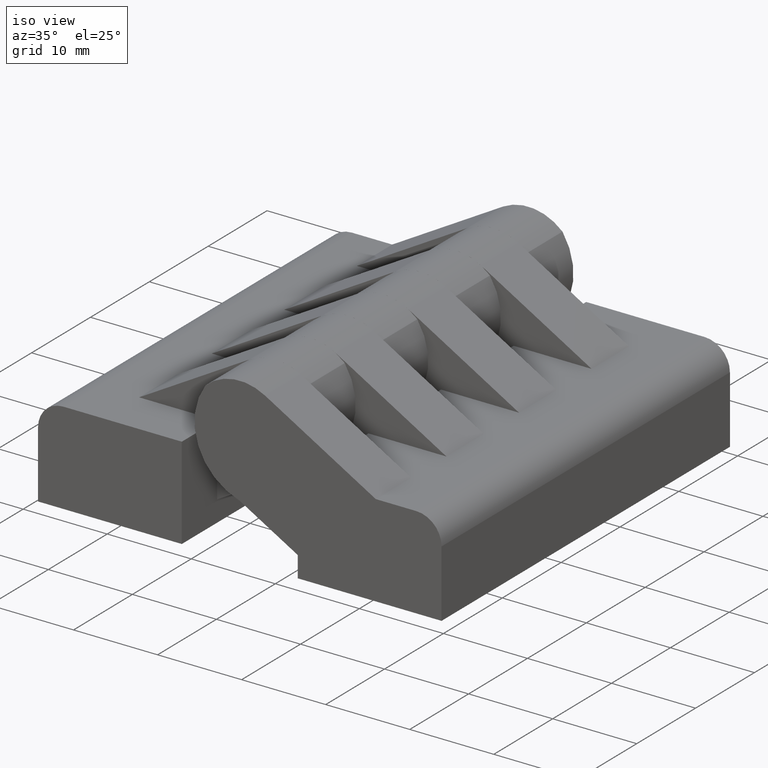
[diagram: clean part render]
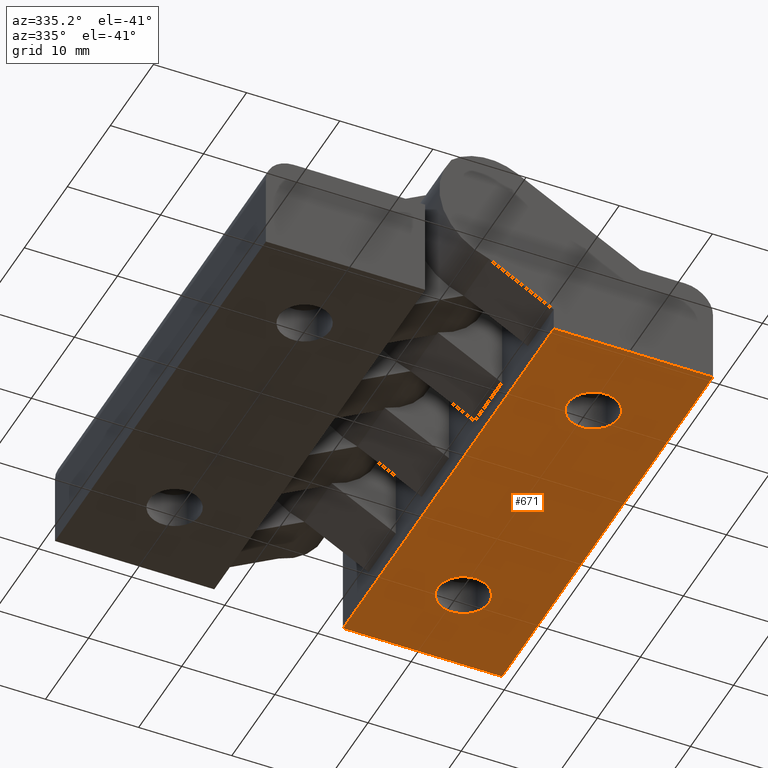
[diagram: tour spotlight — one face highlighted and labeled with its STEP entity id]
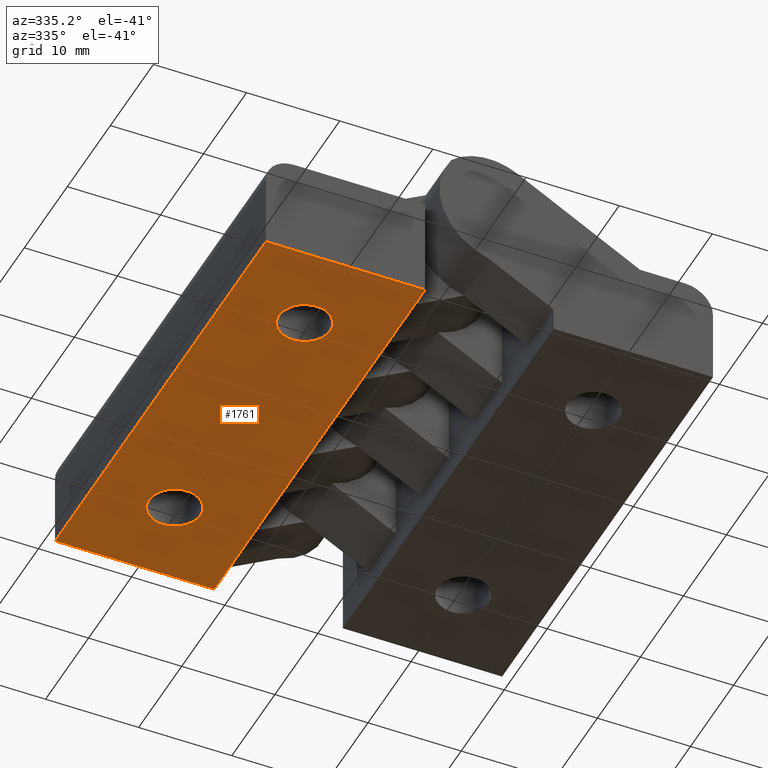
[diagram: tour spotlight — one face highlighted and labeled with its STEP entity id]
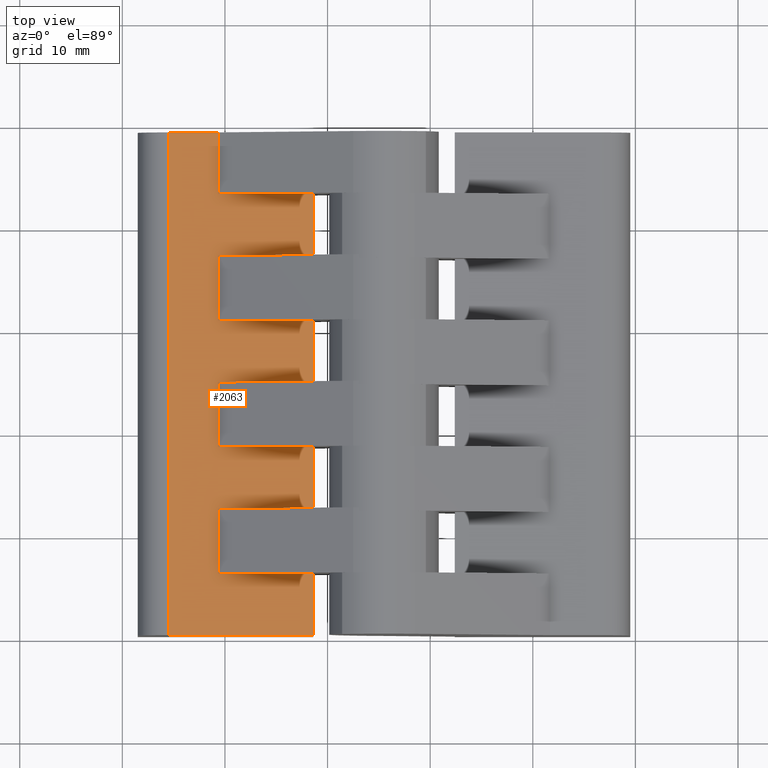
[diagram: tour spotlight — one face highlighted and labeled with its STEP entity id]
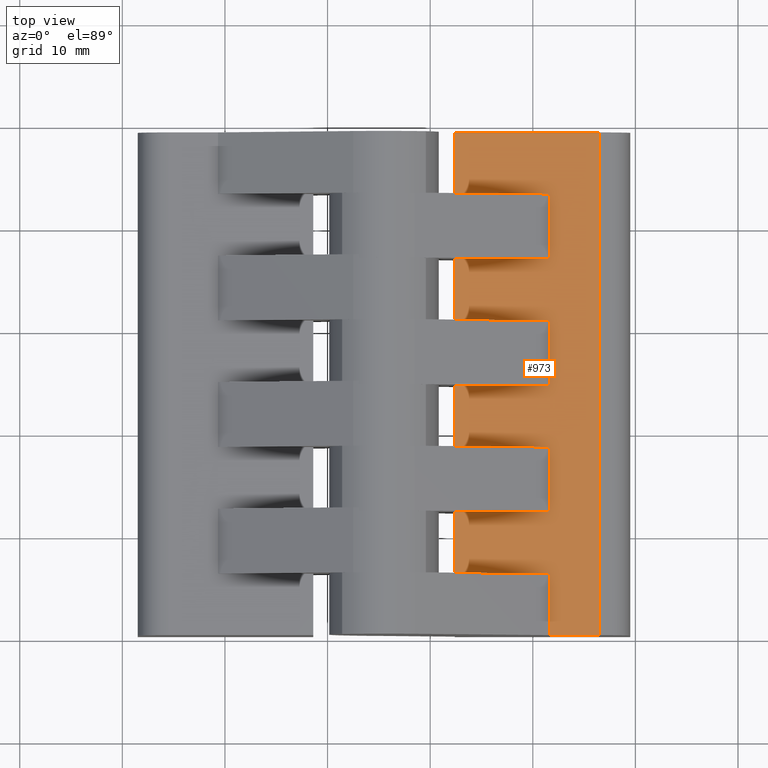
[diagram: tour spotlight — one face highlighted and labeled with its STEP entity id]
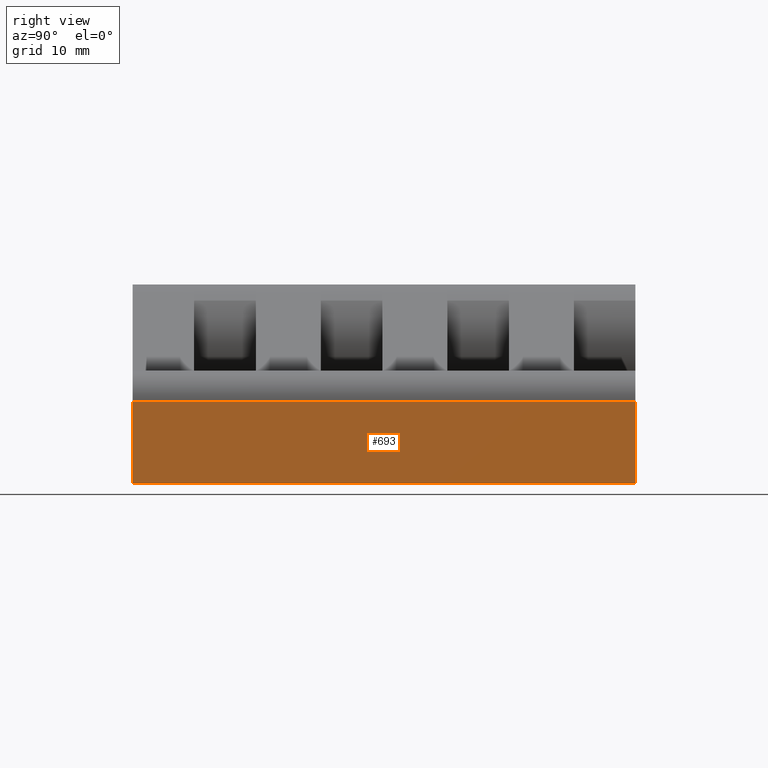
[diagram: tour spotlight — one face highlighted and labeled with its STEP entity id]
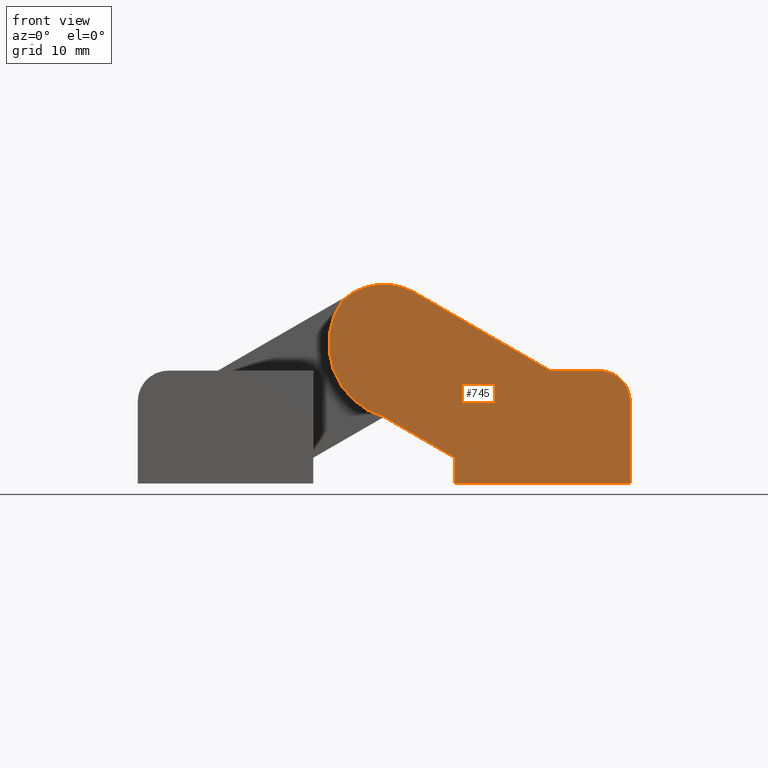
[diagram: tour spotlight — one face highlighted and labeled with its STEP entity id]
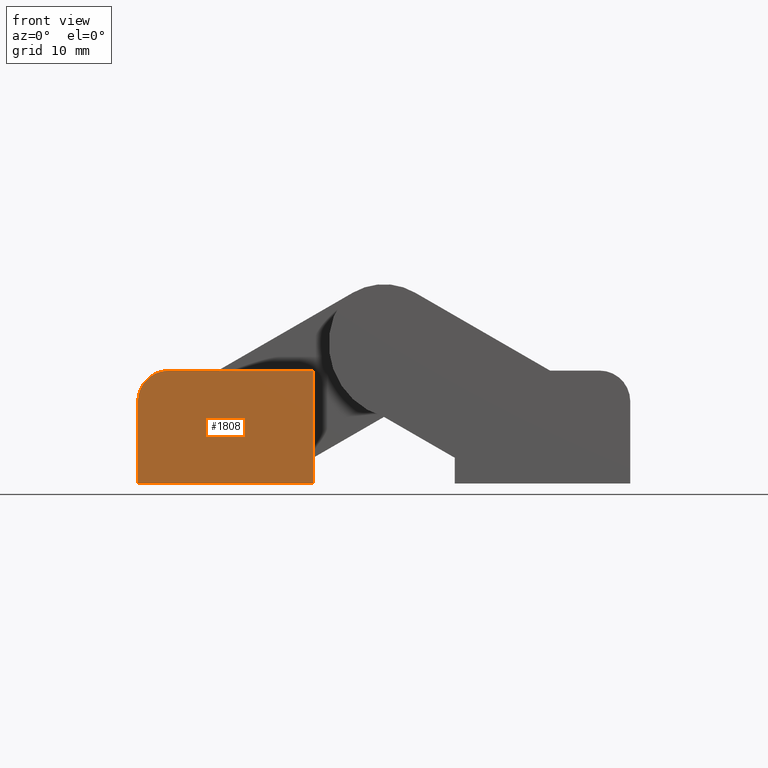
[diagram: tour spotlight — one face highlighted and labeled with its STEP entity id]
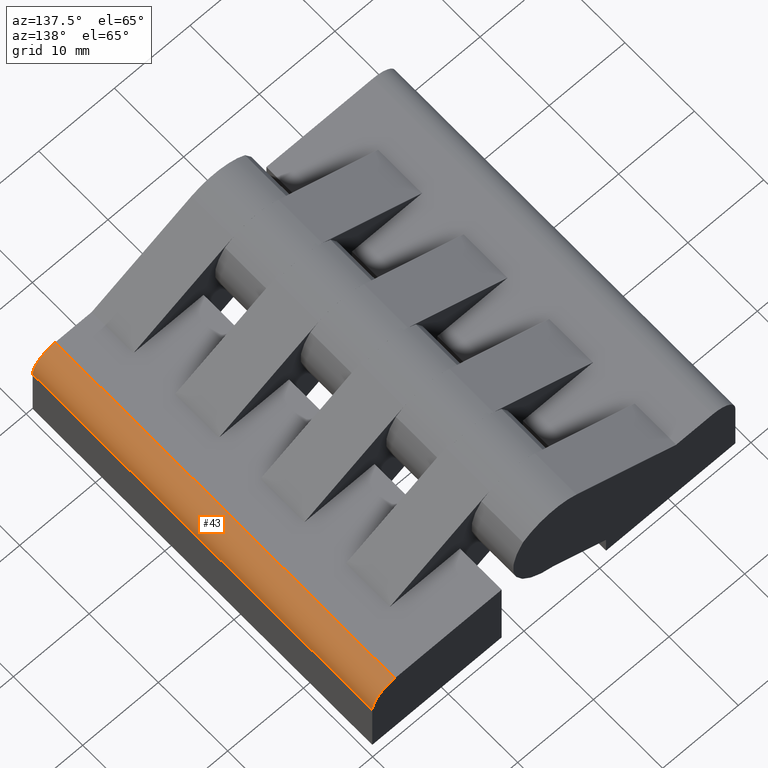
[diagram: tour spotlight — one face highlighted and labeled with its STEP entity id]
A machine part: a face-by-face anatomy tour. The part has 68 B-rep faces; the first image is the clean iso view, then the 8 largest visible faces are spotlighted one at a time (largest first), each with its STEP entity span.

Face 1 — auxiliary view, entity #671. In plain terms, the highlighted planar face has unit normal (0, 0, -1).
Definition (entity closure, byte-faithful):
#592=CARTESIAN_POINT('',(22.399999999910506,9.399999999766358,-5.755840E-016));
#593=DIRECTION('',(0.0,0.0,-1.0));
#594=DIRECTION('',(1.0,0.0,0.0));
#595=AXIS2_PLACEMENT_3D('',#592,#593,#594);
#596=PLANE('',#595);
#597=CARTESIAN_POINT('',(39.499999999842203,9.399999999766358,-5.755840E-016));
#598=VERTEX_POINT('',#597);
#599=CARTESIAN_POINT('',(39.499999999842203,-39.600000000037646,2.424801E-015));
#600=VERTEX_POINT('',#599);
#601=CARTESIAN_POINT('',(39.499999999842203,9.399999999766358,-5.755840E-016));
#602=DIRECTION('',(0.0,-1.0,0.0));
#603=VECTOR('',#602,48.999999999804004);
#604=LINE('',#601,#603);
#605=EDGE_CURVE('',#598,#600,#604,.T.);
#606=ORIENTED_EDGE('',*,*,#605,.T.);
#607=CARTESIAN_POINT('',(22.399999999910506,-39.600000000037646,2.424801E-015));
#608=VERTEX_POINT('',#607);
#609=CARTESIAN_POINT('',(22.399999999910506,-39.600000000037646,2.424801E-015));
#610=DIRECTION('',(1.0,0.0,0.0));
#611=VECTOR('',#610,17.099999999931697);
#612=LINE('',#609,#611);
#613=EDGE_CURVE('',#608,#600,#612,.T.);
#614=ORIENTED_EDGE('',*,*,#613,.F.);
#615=CARTESIAN_POINT('',(22.399999999910506,9.399999999766358,-5.755840E-016));
#616=VERTEX_POINT('',#615);
#617=CARTESIAN_POINT('',(22.399999999910506,-39.600000000037646,2.424801E-015));
#618=DIRECTION('',(0.0,1.0,0.0));
#619=VECTOR('',#618,48.999999999804004);
#620=LINE('',#617,#619);
#621=EDGE_CURVE('',#608,#616,#620,.T.);
#622=ORIENTED_EDGE('',*,*,#621,.T.);
#623=CARTESIAN_POINT('',(22.399999999910506,9.399999999766358,-5.755840E-016));
#624=DIRECTION('',(1.0,0.0,0.0));
#625=VECTOR('',#624,17.099999999931697);
#626=LINE('',#623,#625);
#627=EDGE_CURVE('',#616,#598,#626,.T.);
#628=ORIENTED_EDGE('',*,*,#627,.T.);
#629=EDGE_LOOP('',(#606,#614,#622,#628));
#630=FACE_OUTER_BOUND('',#629,.T.);
#631=CARTESIAN_POINT('',(28.249999999876309,-30.200000000075299,1.849217E-015));
#632=VERTEX_POINT('',#631);
#633=CARTESIAN_POINT('',(33.749999999876309,-30.200000000075299,1.849217E-015));
#634=VERTEX_POINT('',#633);
#635=CARTESIAN_POINT('',(30.999999999876309,-30.200000000075299,1.849217E-015));
#636=DIRECTION('',(0.0,-6.123234E-017,-1.0));
#637=DIRECTION('',(1.0,0.0,0.0));
#638=AXIS2_PLACEMENT_3D('',#635,#636,#637);
#639=CIRCLE('',#638,2.750000000000000);
#640=EDGE_CURVE('',#632,#634,#639,.T.);
#641=ORIENTED_EDGE('',*,*,#640,.F.);
#642=CARTESIAN_POINT('',(30.999999999876309,-30.200000000075299,1.849217E-015));
#643=DIRECTION('',(0.0,-6.123234E-017,-1.0));
#644=DIRECTION('',(1.0,0.0,0.0));
#645=AXIS2_PLACEMENT_3D('',#642,#643,#644);
#646=CIRCLE('',#645,2.750000000000000);
#647=EDGE_CURVE('',#634,#632,#646,.T.);
#648=ORIENTED_EDGE('',*,*,#647,.F.);
#649=EDGE_LOOP('',(#641,#648));
#650=FACE_BOUND('',#649,.T.);
#651=CARTESIAN_POINT('',(28.249999999876309,-1.959890E-010,1.200087E-026));
#652=VERTEX_POINT('',#651);
#653=CARTESIAN_POINT('',(33.749999999876309,-1.959890E-010,1.200087E-026));
#654=VERTEX_POINT('',#653);
#655=CARTESIAN_POINT('',(30.999999999876309,-1.959890E-010,1.200087E-026));
#656=DIRECTION('',(0.0,-6.123234E-017,-1.0));
#657=DIRECTION('',(1.0,0.0,0.0));
#658=AXIS2_PLACEMENT_3D('',#655,#656,#657);
#659=CIRCLE('',#658,2.750000000000000);
#660=EDGE_CURVE('',#652,#654,#659,.T.);
#661=ORIENTED_EDGE('',*,*,#660,.F.);
#662=CARTESIAN_POINT('',(30.999999999876309,-1.959890E-010,1.200087E-026));
#663=DIRECTION('',(0.0,-6.123234E-017,-1.0));
#664=DIRECTION('',(1.0,0.0,0.0));
#665=AXIS2_PLACEMENT_3D('',#662,#663,#664);
#666=CIRCLE('',#665,2.750000000000000);
#667=EDGE_CURVE('',#654,#652,#666,.T.);
#668=ORIENTED_EDGE('',*,*,#667,.F.);
#669=EDGE_LOOP('',(#661,#668));
#670=FACE_BOUND('',#669,.T.);
#671=ADVANCED_FACE('',(#630,#650,#670),#596,.T.);

Face 2 — auxiliary view, entity #1761. In plain terms, the highlighted planar face has unit normal (0, 0, -1).
Definition (entity closure, byte-faithful):
#1682=CARTESIAN_POINT('',(8.599999999965803,-39.599999999841650,2.424801E-015));
#1683=DIRECTION('',(0.0,0.0,-1.0));
#1684=DIRECTION('',(-1.0,0.0,0.0));
#1685=AXIS2_PLACEMENT_3D('',#1682,#1683,#1684);
#1686=PLANE('',#1685);
#1687=CARTESIAN_POINT('',(-8.499999999965894,-39.599999999841650,2.424801E-015));
#1688=VERTEX_POINT('',#1687);
#1689=CARTESIAN_POINT('',(-8.499999999965894,9.399999999962347,-5.755840E-016));
#1690=VERTEX_POINT('',#1689);
#1691=CARTESIAN_POINT('',(-8.499999999965894,-39.599999999841650,2.424801E-015));
#1692=DIRECTION('',(0.0,1.0,0.0));
#1693=VECTOR('',#1692,48.999999999804004);
#1694=LINE('',#1691,#1693);
#1695=EDGE_CURVE('',#1688,#1690,#1694,.T.);
#1696=ORIENTED_EDGE('',*,*,#1695,.T.);
#1697=CARTESIAN_POINT('',(8.599999999965803,9.399999999962351,-5.755840E-016));
#1698=VERTEX_POINT('',#1697);
#1699=CARTESIAN_POINT('',(8.599999999965803,9.399999999962349,-5.755840E-016));
#1700=DIRECTION('',(-1.0,0.0,0.0));
#1701=VECTOR('',#1700,17.099999999931697);
#1702=LINE('',#1699,#1701);
#1703=EDGE_CURVE('',#1698,#1690,#1702,.T.);
#1704=ORIENTED_EDGE('',*,*,#1703,.F.);
#1705=CARTESIAN_POINT('',(8.599999999965803,-39.599999999841650,2.424801E-015));
#1706=VERTEX_POINT('',#1705);
#1707=CARTESIAN_POINT('',(8.599999999965803,9.399999999962351,-5.755840E-016));
#1708=DIRECTION('',(0.0,-1.0,0.0));
#1709=VECTOR('',#1708,48.999999999804004);
#1710=LINE('',#1707,#1709);
#1711=EDGE_CURVE('',#1698,#1706,#1710,.T.);
#1712=ORIENTED_EDGE('',*,*,#1711,.T.);
#1713=CARTESIAN_POINT('',(8.599999999965803,-39.599999999841650,2.424801E-015));
#1714=DIRECTION('',(-1.0,0.0,0.0));
#1715=VECTOR('',#1714,17.099999999931697);
#1716=LINE('',#1713,#1715);
#1717=EDGE_CURVE('',#1706,#1688,#1716,.T.);
#1718=ORIENTED_EDGE('',*,*,#1717,.T.);
#1719=EDGE_LOOP('',(#1696,#1704,#1712,#1718));
#1720=FACE_OUTER_BOUND('',#1719,.T.);
#1721=CARTESIAN_POINT('',(2.750000000000000,3.367779E-016,-2.062170E-032));
#1722=VERTEX_POINT('',#1721);
#1723=CARTESIAN_POINT('',(-2.750000000000000,0.0,0.0));
#1724=VERTEX_POINT('',#1723);
#1725=CARTESIAN_POINT('',(0.0,0.0,0.0));
#1726=DIRECTION('',(0.0,-6.123234E-017,-1.0));
#1727=DIRECTION('',(-1.0,-1.224647E-016,7.498799E-033));
#1728=AXIS2_PLACEMENT_3D('',#1725,#1726,#1727);
#1729=CIRCLE('',#1728,2.750000000000000);
#1730=EDGE_CURVE('',#1722,#1724,#1729,.T.);
#1731=ORIENTED_EDGE('',*,*,#1730,.F.);
#1732=CARTESIAN_POINT('',(0.0,0.0,0.0));
#1733=DIRECTION('',(0.0,-6.123234E-017,-1.0));
#1734=DIRECTION('',(-1.0,-1.224647E-016,7.498799E-033));
#1735=AXIS2_PLACEMENT_3D('',#1732,#1733,#1734);
#1736=CIRCLE('',#1735,2.750000000000000);
#1737=EDGE_CURVE('',#1724,#1722,#1736,.T.);
#1738=ORIENTED_EDGE('',*,*,#1737,.F.);
#1739=EDGE_LOOP('',(#1731,#1738));
#1740=FACE_BOUND('',#1739,.T.);
#1741=CARTESIAN_POINT('',(2.750000000000000,-30.199999999879303,1.849217E-015));
#1742=VERTEX_POINT('',#1741);
#1743=CARTESIAN_POINT('',(-2.750000000000000,-30.199999999879303,1.849217E-015));
#1744=VERTEX_POINT('',#1743);
#1745=CARTESIAN_POINT('',(0.0,-30.199999999879303,1.849217E-015));
#1746=DIRECTION('',(0.0,-6.123234E-017,-1.0));
#1747=DIRECTION('',(-1.0,-1.224647E-016,7.498799E-033));
#1748=AXIS2_PLACEMENT_3D('',#1745,#1746,#1747);
#1749=CIRCLE('',#1748,2.750000000000000);
#1750=EDGE_CURVE('',#1742,#1744,#1749,.T.);
#1751=ORIENTED_EDGE('',*,*,#1750,.F.);
#1752=CARTESIAN_POINT('',(0.0,-30.199999999879303,1.849217E-015));
#1753=DIRECTION('',(0.0,-6.123234E-017,-1.0));
#1754=DIRECTION('',(-1.0,-1.224647E-016,7.498799E-033));
#1755=AXIS2_PLACEMENT_3D('',#1752,#1753,#1754);
#1756=CIRCLE('',#1755,2.750000000000000);
#1757=EDGE_CURVE('',#1744,#1742,#1756,.T.);
#1758=ORIENTED_EDGE('',*,*,#1757,.F.);
#1759=EDGE_LOOP('',(#1751,#1758));
#1760=FACE_BOUND('',#1759,.T.);
#1761=ADVANCED_FACE('',(#1720,#1740,#1760),#1686,.T.);

Face 3 — top view, entity #2063. In plain terms, the highlighted planar face has unit normal (0, 0, 1).
Definition (entity closure, byte-faithful):
#1107=CARTESIAN_POINT('',(-5.499999999978172,-39.599999999841650,10.999999999956119));
#1108=VERTEX_POINT('',#1107);
#1116=CARTESIAN_POINT('',(-5.499999999978172,9.399999999962347,10.999999999956117));
#1117=VERTEX_POINT('',#1116);
#1118=CARTESIAN_POINT('',(-5.499999999978172,-39.599999999841650,10.999999999956119));
#1119=DIRECTION('',(0.0,1.0,0.0));
#1120=VECTOR('',#1119,48.999999999804004);
#1121=LINE('',#1118,#1120);
#1122=EDGE_CURVE('',#1108,#1117,#1121,.T.);
#1139=CARTESIAN_POINT('',(-0.677568135662625,-8.933333333370982,10.999999999956117));
#1140=VERTEX_POINT('',#1139);
#1141=CARTESIAN_POINT('',(-0.677568135662625,-2.600000000037652,10.999999999956117));
#1142=VERTEX_POINT('',#1141);
#1143=CARTESIAN_POINT('',(-0.677568135662629,-8.933333333370978,10.999999999956117));
#1144=DIRECTION('',(0.0,1.0,0.0));
#1145=VECTOR('',#1144,6.333333333333332);
#1146=LINE('',#1143,#1145);
#1147=EDGE_CURVE('',#1140,#1142,#1146,.T.);
#1179=CARTESIAN_POINT('',(-0.677568135662625,-21.266666666704317,10.999999999956119));
#1180=VERTEX_POINT('',#1179);
#1181=CARTESIAN_POINT('',(-0.677568135662625,-14.933333333370989,10.999999999956119));
#1182=VERTEX_POINT('',#1181);
#1183=CARTESIAN_POINT('',(-0.677568135662627,-21.266666666704314,10.999999999956117));
#1184=DIRECTION('',(0.0,1.0,0.0));
#1185=VECTOR('',#1184,6.333333333333332);
#1186=LINE('',#1183,#1185);
#1187=EDGE_CURVE('',#1180,#1182,#1186,.T.);
#1219=CARTESIAN_POINT('',(-0.677568135662625,-33.600000000037646,10.999999999956119));
#1220=VERTEX_POINT('',#1219);
#1221=CARTESIAN_POINT('',(-0.677568135662625,-27.266666666704317,10.999999999956119));
#1222=VERTEX_POINT('',#1221);
#1223=CARTESIAN_POINT('',(-0.677568135662626,-33.600000000037646,10.999999999956119));
#1224=DIRECTION('',(0.0,1.0,0.0));
#1225=VECTOR('',#1224,6.333333333333332);
#1226=LINE('',#1223,#1225);
#1227=EDGE_CURVE('',#1220,#1222,#1226,.T.);
#1259=CARTESIAN_POINT('',(-0.677568135662625,3.399999999962351,10.999999999956117));
#1260=VERTEX_POINT('',#1259);
#1261=CARTESIAN_POINT('',(-0.677568135662625,9.399999999962351,10.999999999956117));
#1262=VERTEX_POINT('',#1261);
#1263=CARTESIAN_POINT('',(-0.677568135662630,3.399999999962354,10.999999999956117));
#1264=DIRECTION('',(0.0,1.0,0.0));
#1265=VECTOR('',#1264,6.0);
#1266=LINE('',#1263,#1265);
#1267=EDGE_CURVE('',#1260,#1262,#1266,.T.);
#1791=CARTESIAN_POINT('',(8.599999999965803,-39.600000000037646,10.999999999956289));
#1792=VERTEX_POINT('',#1791);
#1799=CARTESIAN_POINT('',(8.599999999965803,-39.600000000037646,10.999999999956289));
#1800=DIRECTION('',(-1.0,1.390043E-011,-1.209434E-014));
#1801=VECTOR('',#1800,14.099999999943975);
#1802=LINE('',#1799,#1801);
#1803=EDGE_CURVE('',#1792,#1108,#1802,.T.);
#1815=CARTESIAN_POINT('',(-5.499999999978172,9.399999999962351,10.999999999956117));
#1816=DIRECTION('',(1.0,0.0,0.0));
#1817=VECTOR('',#1816,4.822431864316513);
#1818=LINE('',#1815,#1817);
#1819=EDGE_CURVE('',#1117,#1262,#1818,.T.);
#1841=CARTESIAN_POINT('',(8.599999999965803,3.399999999962351,10.999999999956287));
#1842=VERTEX_POINT('',#1841);
#1853=CARTESIAN_POINT('',(8.599999999965803,3.399999999962353,10.999999999956287));
#1854=DIRECTION('',(-1.0,0.0,0.0));
#1855=VECTOR('',#1854,9.277568135628428);
#1856=LINE('',#1853,#1855);
#1857=EDGE_CURVE('',#1842,#1260,#1856,.T.);
#1867=CARTESIAN_POINT('',(8.599999999965803,-2.600000000037645,10.999999999956287));
#1868=VERTEX_POINT('',#1867);
#1869=CARTESIAN_POINT('',(8.599999999965803,-2.600000000037647,10.999999999956287));
#1870=DIRECTION('',(-1.0,0.0,0.0));
#1871=VECTOR('',#1870,9.277568135628428);
#1872=LINE('',#1869,#1871);
#1873=EDGE_CURVE('',#1868,#1142,#1872,.T.);
#1893=CARTESIAN_POINT('',(8.599999999965803,-8.933333333370982,10.999999999956287));
#1894=VERTEX_POINT('',#1893);
#1905=CARTESIAN_POINT('',(8.599999999965803,-8.933333333370984,10.999999999956287));
#1906=DIRECTION('',(-1.0,0.0,0.0));
#1907=VECTOR('',#1906,9.277568135628428);
#1908=LINE('',#1905,#1907);
#1909=EDGE_CURVE('',#1894,#1140,#1908,.T.);
#1919=CARTESIAN_POINT('',(8.599999999965803,-14.933333333370982,10.999999999956289));
#1920=VERTEX_POINT('',#1919);
#1921=CARTESIAN_POINT('',(8.599999999965803,-14.933333333370983,10.999999999956289));
#1922=DIRECTION('',(-1.0,0.0,0.0));
#1923=VECTOR('',#1922,9.277568135628428);
#1924=LINE('',#1921,#1923);
#1925=EDGE_CURVE('',#1920,#1182,#1924,.T.);
#1945=CARTESIAN_POINT('',(8.599999999965803,-21.266666666704317,10.999999999956289));
#1946=VERTEX_POINT('',#1945);
#1957=CARTESIAN_POINT('',(8.599999999965803,-21.266666666704321,10.999999999956289));
#1958=DIRECTION('',(-1.0,0.0,0.0));
#1959=VECTOR('',#1958,9.277568135628428);
#1960=LINE('',#1957,#1959);
#1961=EDGE_CURVE('',#1946,#1180,#1960,.T.);
#1971=CARTESIAN_POINT('',(8.599999999965803,-27.266666666704317,10.999999999956289));
#1972=VERTEX_POINT('',#1971);
#1973=CARTESIAN_POINT('',(8.599999999965803,-27.266666666704321,10.999999999956289));
#1974=DIRECTION('',(-1.0,0.0,0.0));
#1975=VECTOR('',#1974,9.277568135628428);
#1976=LINE('',#1973,#1975);
#1977=EDGE_CURVE('',#1972,#1222,#1976,.T.);
#1997=CARTESIAN_POINT('',(8.599999999965803,-33.600000000037646,10.999999999956289));
#1998=VERTEX_POINT('',#1997);
#2009=CARTESIAN_POINT('',(8.599999999965803,-33.600000000037646,10.999999999956289));
#2010=DIRECTION('',(-1.0,0.0,0.0));
#2011=VECTOR('',#2010,9.277568135628428);
#2012=LINE('',#2009,#2011);
#2013=EDGE_CURVE('',#1998,#1220,#2012,.T.);
#2018=CARTESIAN_POINT('',(-5.500043307065425,-39.600043306928903,10.999999999956119));
#2019=DIRECTION('',(0.0,0.0,1.0));
#2020=DIRECTION('',(1.0,0.0,0.0));
#2021=AXIS2_PLACEMENT_3D('',#2018,#2019,#2020);
#2022=PLANE('',#2021);
#2023=ORIENTED_EDGE('',*,*,#1857,.T.);
#2024=ORIENTED_EDGE('',*,*,#1267,.T.);
#2025=ORIENTED_EDGE('',*,*,#1819,.F.);
#2026=ORIENTED_EDGE('',*,*,#1122,.F.);
#2027=ORIENTED_EDGE('',*,*,#1803,.F.);
#2028=CARTESIAN_POINT('',(8.599999999965803,-33.600000000037646,10.999999999956289));
#2029=DIRECTION('',(0.0,-1.0,0.0));
#2030=VECTOR('',#2029,6.0);
#2031=LINE('',#2028,#2030);
#2032=EDGE_CURVE('',#1998,#1792,#2031,.T.);
#2033=ORIENTED_EDGE('',*,*,#2032,.F.);
#2034=ORIENTED_EDGE('',*,*,#2013,.T.);
#2035=ORIENTED_EDGE('',*,*,#1227,.T.);
#2036=ORIENTED_EDGE('',*,*,#1977,.F.);
#2037=CARTESIAN_POINT('',(8.599999999965803,-21.266666666704317,10.999999999956289));
#2038=DIRECTION('',(0.0,-1.0,0.0));
#2039=VECTOR('',#2038,6.0);
#2040=LINE('',#2037,#2039);
#2041=EDGE_CURVE('',#1946,#1972,#2040,.T.);
#2042=ORIENTED_EDGE('',*,*,#2041,.F.);
#2043=ORIENTED_EDGE('',*,*,#1961,.T.);
#2044=ORIENTED_EDGE('',*,*,#1187,.T.);
#2045=ORIENTED_EDGE('',*,*,#1925,.F.);
#2046=CARTESIAN_POINT('',(8.599999999965803,-8.933333333370982,10.999999999956287));
#2047=DIRECTION('',(0.0,-1.0,0.0));
#2048=VECTOR('',#2047,6.0);
#2049=LINE('',#2046,#2048);
#2050=EDGE_CURVE('',#1894,#1920,#2049,.T.);
#2051=ORIENTED_EDGE('',*,*,#2050,.F.);
#2052=ORIENTED_EDGE('',*,*,#1909,.T.);
#2053=ORIENTED_EDGE('',*,*,#1147,.T.);
#2054=ORIENTED_EDGE('',*,*,#1873,.F.);
#2055=CARTESIAN_POINT('',(8.599999999965803,3.399999999962351,10.999999999956287));
#2056=DIRECTION('',(0.0,-1.0,0.0));
#2057=VECTOR('',#2056,6.0);
#2058=LINE('',#2055,#2057);
#2059=EDGE_CURVE('',#1842,#1868,#2058,.T.);
#2060=ORIENTED_EDGE('',*,*,#2059,.F.);
#2061=EDGE_LOOP('',(#2023,#2024,#2025,#2026,#2027,#2033,#2034,#2035,#2036,#2042,#2043,#2044,#2045,#2051,#2052,#2053,#2054,#2060));
#2062=FACE_OUTER_BOUND('',#2061,.T.);
#2063=ADVANCED_FACE('',(#2062),#2022,.T.);

Face 4 — top view, entity #973. In plain terms, the highlighted planar face has unit normal (0, 0, 1).
Definition (entity closure, byte-faithful):
#17=CARTESIAN_POINT('',(36.499999999854481,9.399999999766358,10.999999999956117));
#18=VERTEX_POINT('',#17);
#26=CARTESIAN_POINT('',(36.499999999854481,-39.600000000037646,10.999999999956119));
#27=VERTEX_POINT('',#26);
#28=CARTESIAN_POINT('',(36.499999999854481,9.399999999766358,10.999999999956117));
#29=DIRECTION('',(0.0,-1.0,0.0));
#30=VECTOR('',#29,48.999999999804004);
#31=LINE('',#28,#30);
#32=EDGE_CURVE('',#18,#27,#31,.T.);
#49=CARTESIAN_POINT('',(31.677568135538934,-21.266666666704314,10.999999999956119));
#50=VERTEX_POINT('',#49);
#51=CARTESIAN_POINT('',(31.677568135538934,-27.600000000037646,10.999999999956119));
#52=VERTEX_POINT('',#51);
#53=CARTESIAN_POINT('',(31.677568135538934,-21.266666666704314,10.999999999956119));
#54=DIRECTION('',(0.0,-1.0,0.0));
#55=VECTOR('',#54,6.333333333333332);
#56=LINE('',#53,#55);
#57=EDGE_CURVE('',#50,#52,#56,.T.);
#89=CARTESIAN_POINT('',(31.677568135538934,-8.933333333370978,10.999999999956117));
#90=VERTEX_POINT('',#89);
#91=CARTESIAN_POINT('',(31.677568135538934,-15.266666666704310,10.999999999956119));
#92=VERTEX_POINT('',#91);
#93=CARTESIAN_POINT('',(31.677568135538934,-8.933333333370978,10.999999999956119));
#94=DIRECTION('',(0.0,-1.0,0.0));
#95=VECTOR('',#94,6.333333333333332);
#96=LINE('',#93,#95);
#97=EDGE_CURVE('',#90,#92,#96,.T.);
#129=CARTESIAN_POINT('',(31.677568135538934,3.399999999962355,10.999999999956117));
#130=VERTEX_POINT('',#129);
#131=CARTESIAN_POINT('',(31.677568135538934,-2.933333333370977,10.999999999956117));
#132=VERTEX_POINT('',#131);
#133=CARTESIAN_POINT('',(31.677568135538934,3.399999999962354,10.999999999956117));
#134=DIRECTION('',(0.0,-1.0,0.0));
#135=VECTOR('',#134,6.333333333333332);
#136=LINE('',#133,#135);
#137=EDGE_CURVE('',#130,#132,#136,.T.);
#169=CARTESIAN_POINT('',(31.677568135538934,-33.600000000037646,10.999999999956119));
#170=VERTEX_POINT('',#169);
#171=CARTESIAN_POINT('',(31.677568135538934,-39.600000000037646,10.999999999956119));
#172=VERTEX_POINT('',#171);
#173=CARTESIAN_POINT('',(31.677568135538934,-33.600000000037646,10.999999999956119));
#174=DIRECTION('',(0.0,-1.0,0.0));
#175=VECTOR('',#174,6.0);
#176=LINE('',#173,#175);
#177=EDGE_CURVE('',#170,#172,#176,.T.);
#701=CARTESIAN_POINT('',(22.399999999910506,9.399999999962354,10.999999999956287));
#702=VERTEX_POINT('',#701);
#709=CARTESIAN_POINT('',(22.399999999910506,9.399999999962354,10.999999999956287));
#710=DIRECTION('',(1.0,-1.390043E-011,-1.209434E-014));
#711=VECTOR('',#710,14.099999999943975);
#712=LINE('',#709,#711);
#713=EDGE_CURVE('',#702,#18,#712,.T.);
#725=CARTESIAN_POINT('',(36.499999999854481,-39.600000000037646,10.999999999956119));
#726=DIRECTION('',(-1.0,0.0,0.0));
#727=VECTOR('',#726,4.822431864316513);
#728=LINE('',#725,#727);
#729=EDGE_CURVE('',#27,#172,#728,.T.);
#751=CARTESIAN_POINT('',(22.399999999910506,-33.600000000037646,10.999999999956289));
#752=VERTEX_POINT('',#751);
#763=CARTESIAN_POINT('',(22.399999999910506,-33.600000000037646,10.999999999956289));
#764=DIRECTION('',(1.0,0.0,0.0));
#765=VECTOR('',#764,9.277568135628428);
#766=LINE('',#763,#765);
#767=EDGE_CURVE('',#752,#170,#766,.T.);
#777=CARTESIAN_POINT('',(22.399999999910506,-27.600000000037646,10.999999999956289));
#778=VERTEX_POINT('',#777);
#779=CARTESIAN_POINT('',(22.399999999910506,-27.600000000037646,10.999999999956289));
#780=DIRECTION('',(1.0,0.0,0.0));
#781=VECTOR('',#780,9.277568135628428);
#782=LINE('',#779,#781);
#783=EDGE_CURVE('',#778,#52,#782,.T.);
#803=CARTESIAN_POINT('',(22.399999999910506,-21.266666666704310,10.999999999956289));
#804=VERTEX_POINT('',#803);
#815=CARTESIAN_POINT('',(22.399999999910506,-21.266666666704310,10.999999999956289));
#816=DIRECTION('',(1.0,0.0,0.0));
#817=VECTOR('',#816,9.277568135628428);
#818=LINE('',#815,#817);
#819=EDGE_CURVE('',#804,#50,#818,.T.);
#829=CARTESIAN_POINT('',(22.399999999910506,-15.266666666704312,10.999999999956289));
#830=VERTEX_POINT('',#829);
#831=CARTESIAN_POINT('',(22.399999999910506,-15.266666666704312,10.999999999956289));
#832=DIRECTION('',(1.0,0.0,0.0));
#833=VECTOR('',#832,9.277568135628428);
#834=LINE('',#831,#833);
#835=EDGE_CURVE('',#830,#92,#834,.T.);
#855=CARTESIAN_POINT('',(22.399999999910506,-8.933333333370978,10.999999999956287));
#856=VERTEX_POINT('',#855);
#867=CARTESIAN_POINT('',(22.399999999910506,-8.933333333370978,10.999999999956287));
#868=DIRECTION('',(1.0,0.0,0.0));
#869=VECTOR('',#868,9.277568135628428);
#870=LINE('',#867,#869);
#871=EDGE_CURVE('',#856,#90,#870,.T.);
#881=CARTESIAN_POINT('',(22.399999999910506,-2.933333333370977,10.999999999956287));
#882=VERTEX_POINT('',#881);
#883=CARTESIAN_POINT('',(22.399999999910506,-2.933333333370977,10.999999999956287));
#884=DIRECTION('',(1.0,0.0,0.0));
#885=VECTOR('',#884,9.277568135628428);
#886=LINE('',#883,#885);
#887=EDGE_CURVE('',#882,#132,#886,.T.);
#907=CARTESIAN_POINT('',(22.399999999910506,3.399999999962355,10.999999999956287));
#908=VERTEX_POINT('',#907);
#919=CARTESIAN_POINT('',(22.399999999910506,3.399999999962355,10.999999999956287));
#920=DIRECTION('',(1.0,0.0,0.0));
#921=VECTOR('',#920,9.277568135628428);
#922=LINE('',#919,#921);
#923=EDGE_CURVE('',#908,#130,#922,.T.);
#928=CARTESIAN_POINT('',(36.500043306941734,9.400043306853611,10.999999999956117));
#929=DIRECTION('',(0.0,0.0,1.0));
#930=DIRECTION('',(-1.0,0.0,0.0));
#931=AXIS2_PLACEMENT_3D('',#928,#929,#930);
#932=PLANE('',#931);
#933=ORIENTED_EDGE('',*,*,#767,.T.);
#934=ORIENTED_EDGE('',*,*,#177,.T.);
#935=ORIENTED_EDGE('',*,*,#729,.F.);
#936=ORIENTED_EDGE('',*,*,#32,.F.);
#937=ORIENTED_EDGE('',*,*,#713,.F.);
#938=CARTESIAN_POINT('',(22.399999999910506,3.399999999962355,10.999999999956287));
#939=DIRECTION('',(0.0,1.0,0.0));
#940=VECTOR('',#939,5.999999999999999);
#941=LINE('',#938,#940);
#942=EDGE_CURVE('',#908,#702,#941,.T.);
#943=ORIENTED_EDGE('',*,*,#942,.F.);
#944=ORIENTED_EDGE('',*,*,#923,.T.);
#945=ORIENTED_EDGE('',*,*,#137,.T.);
#946=ORIENTED_EDGE('',*,*,#887,.F.);
#947=CARTESIAN_POINT('',(22.399999999910506,-8.933333333370978,10.999999999956287));
#948=DIRECTION('',(0.0,1.0,0.0));
#949=VECTOR('',#948,6.0);
#950=LINE('',#947,#949);
#951=EDGE_CURVE('',#856,#882,#950,.T.);
#952=ORIENTED_EDGE('',*,*,#951,.F.);
#953=ORIENTED_EDGE('',*,*,#871,.T.);
#954=ORIENTED_EDGE('',*,*,#97,.T.);
#955=ORIENTED_EDGE('',*,*,#835,.F.);
#956=CARTESIAN_POINT('',(22.399999999910506,-21.266666666704310,10.999999999956289));
#957=DIRECTION('',(0.0,1.0,0.0));
#958=VECTOR('',#957,6.0);
#959=LINE('',#956,#958);
#960=EDGE_CURVE('',#804,#830,#959,.T.);
#961=ORIENTED_EDGE('',*,*,#960,.F.);
#962=ORIENTED_EDGE('',*,*,#819,.T.);
#963=ORIENTED_EDGE('',*,*,#57,.T.);
#964=ORIENTED_EDGE('',*,*,#783,.F.);
#965=CARTESIAN_POINT('',(22.399999999910506,-33.600000000037646,10.999999999956289));
#966=DIRECTION('',(0.0,1.0,0.0));
#967=VECTOR('',#966,6.0);
#968=LINE('',#965,#967);
#969=EDGE_CURVE('',#752,#778,#968,.T.);
#970=ORIENTED_EDGE('',*,*,#969,.F.);
#971=EDGE_LOOP('',(#933,#934,#935,#936,#937,#943,#944,#945,#946,#952,#953,#954,#955,#961,#962,#963,#964,#970));
#972=FACE_OUTER_BOUND('',#971,.T.);
#973=ADVANCED_FACE('',(#972),#932,.T.);

Face 5 — right view, entity #693. In plain terms, the highlighted planar face has unit normal (1, 0, 0).
Definition (entity closure, byte-faithful):
#7=CARTESIAN_POINT('',(39.499999999842203,9.399999999766358,7.999999999968565));
#8=VERTEX_POINT('',#7);
#9=CARTESIAN_POINT('',(39.499999999842203,-39.600000000037646,7.999999999968568));
#10=VERTEX_POINT('',#9);
#11=CARTESIAN_POINT('',(39.499999999842203,9.399999999766358,7.999999999968565));
#12=DIRECTION('',(0.0,-1.0,0.0));
#13=VECTOR('',#12,48.999999999804004);
#14=LINE('',#11,#13);
#15=EDGE_CURVE('',#8,#10,#14,.T.);
#597=CARTESIAN_POINT('',(39.499999999842203,9.399999999766358,-5.755840E-016));
#598=VERTEX_POINT('',#597);
#599=CARTESIAN_POINT('',(39.499999999842203,-39.600000000037646,2.424801E-015));
#600=VERTEX_POINT('',#599);
#601=CARTESIAN_POINT('',(39.499999999842203,9.399999999766358,-5.755840E-016));
#602=DIRECTION('',(0.0,-1.0,0.0));
#603=VECTOR('',#602,48.999999999804004);
#604=LINE('',#601,#603);
#605=EDGE_CURVE('',#598,#600,#604,.T.);
#672=CARTESIAN_POINT('',(39.499999999842203,9.399999999766358,-5.755840E-016));
#673=DIRECTION('',(1.0,0.0,0.0));
#674=DIRECTION('',(0.0,0.0,1.0));
#675=AXIS2_PLACEMENT_3D('',#672,#673,#674);
#676=PLANE('',#675);
#677=CARTESIAN_POINT('',(39.499999999842203,9.399999999766358,-5.755840E-016));
#678=DIRECTION('',(0.0,0.0,1.0));
#679=VECTOR('',#678,7.999999999968566);
#680=LINE('',#677,#679);
#681=EDGE_CURVE('',#598,#8,#680,.T.);
#682=ORIENTED_EDGE('',*,*,#681,.T.);
#683=ORIENTED_EDGE('',*,*,#15,.T.);
#684=CARTESIAN_POINT('',(39.499999999842203,-39.600000000037646,2.424801E-015));
#685=DIRECTION('',(0.0,0.0,1.0));
#686=VECTOR('',#685,7.999999999968566);
#687=LINE('',#684,#686);
#688=EDGE_CURVE('',#600,#10,#687,.T.);
#689=ORIENTED_EDGE('',*,*,#688,.F.);
#690=ORIENTED_EDGE('',*,*,#605,.F.);
#691=EDGE_LOOP('',(#682,#683,#689,#690));
#692=FACE_OUTER_BOUND('',#691,.T.);
#693=ADVANCED_FACE('',(#692),#676,.T.);

Face 6 — front view, entity #745. In plain terms, the highlighted planar face has unit normal (0, -1, 0).
Definition (entity closure, byte-faithful):
#9=CARTESIAN_POINT('',(39.499999999842203,-39.600000000037646,7.999999999968568));
#10=VERTEX_POINT('',#9);
#26=CARTESIAN_POINT('',(36.499999999854481,-39.600000000037646,10.999999999956119));
#27=VERTEX_POINT('',#26);
#34=CARTESIAN_POINT('',(36.499999999854481,-39.600000000037646,7.999999999968568));
#35=DIRECTION('',(0.0,-1.0,6.123234E-017));
#36=DIRECTION('',(1.0,0.0,0.0));
#37=AXIS2_PLACEMENT_3D('',#34,#35,#36);
#38=CIRCLE('',#37,2.999999999987722);
#39=EDGE_CURVE('',#10,#27,#38,.T.);
#171=CARTESIAN_POINT('',(31.677568135538934,-39.600000000037646,10.999999999956119));
#172=VERTEX_POINT('',#171);
#187=CARTESIAN_POINT('',(18.499999999926018,-39.600000000037646,18.608072510316280));
#188=VERTEX_POINT('',#187);
#195=CARTESIAN_POINT('',(31.677568135538941,-39.600000000037646,10.999999999956124));
#196=DIRECTION('',(-0.866025403784456,0.0,0.499999999999970));
#197=VECTOR('',#196,15.216145020720983);
#198=LINE('',#195,#197);
#199=EDGE_CURVE('',#172,#188,#198,.T.);
#318=CARTESIAN_POINT('',(11.420340271182852,-39.600000000037646,17.811508306689465));
#319=VERTEX_POINT('',#318);
#326=CARTESIAN_POINT('',(15.499999999938158,-39.600000000037660,13.411920087630680));
#327=DIRECTION('',(-3.081488E-033,-1.000000000000000,6.123234E-017));
#328=DIRECTION('',(0.500000000000001,5.302876E-017,0.866025403784438));
#329=AXIS2_PLACEMENT_3D('',#326,#327,#328);
#330=CIRCLE('',#329,5.999999999975718);
#331=EDGE_CURVE('',#188,#319,#330,.T.);
#450=CARTESIAN_POINT('',(15.499999999938154,-39.600000000037646,6.483716857382606));
#451=VERTEX_POINT('',#450);
#458=CARTESIAN_POINT('',(17.526384017400236,-39.600000000037660,13.612043587539977));
#459=DIRECTION('',(0.0,-1.000000000000000,6.123234E-017));
#460=DIRECTION('',(-0.823943661413975,3.469864E-017,0.566671724030530));
#461=AXIS2_PLACEMENT_3D('',#458,#459,#460);
#462=CIRCLE('',#461,7.410753953418086);
#463=EDGE_CURVE('',#319,#451,#462,.T.);
#575=CARTESIAN_POINT('',(22.399999999910534,-39.600000000037646,2.499999999990112));
#576=VERTEX_POINT('',#575);
#583=CARTESIAN_POINT('',(15.499999999938154,-39.600000000037646,6.483716857382606));
#584=DIRECTION('',(0.866025403784437,0.0,-0.500000000000002));
#585=VECTOR('',#584,7.967433714784955);
#586=LINE('',#583,#585);
#587=EDGE_CURVE('',#451,#576,#586,.T.);
#599=CARTESIAN_POINT('',(39.499999999842203,-39.600000000037646,2.424801E-015));
#600=VERTEX_POINT('',#599);
#607=CARTESIAN_POINT('',(22.399999999910506,-39.600000000037646,2.424801E-015));
#608=VERTEX_POINT('',#607);
#609=CARTESIAN_POINT('',(22.399999999910506,-39.600000000037646,2.424801E-015));
#610=DIRECTION('',(1.0,0.0,0.0));
#611=VECTOR('',#610,17.099999999931697);
#612=LINE('',#609,#611);
#613=EDGE_CURVE('',#608,#600,#612,.T.);
#684=CARTESIAN_POINT('',(39.499999999842203,-39.600000000037646,2.424801E-015));
#685=DIRECTION('',(0.0,0.0,1.0));
#686=VECTOR('',#685,7.999999999968566);
#687=LINE('',#684,#686);
#688=EDGE_CURVE('',#600,#10,#687,.T.);
#719=CARTESIAN_POINT('',(7.177188345510388,-39.600000000037646,-1.941196733617344));
#720=DIRECTION('',(0.0,-1.0,0.0));
#721=DIRECTION('',(1.0,0.0,0.0));
#722=AXIS2_PLACEMENT_3D('',#719,#720,#721);
#723=PLANE('',#722);
#724=ORIENTED_EDGE('',*,*,#39,.T.);
#725=CARTESIAN_POINT('',(36.499999999854481,-39.600000000037646,10.999999999956119));
#726=DIRECTION('',(-1.0,0.0,0.0));
#727=VECTOR('',#726,4.822431864316513);
#728=LINE('',#725,#727);
#729=EDGE_CURVE('',#27,#172,#728,.T.);
#730=ORIENTED_EDGE('',*,*,#729,.T.);
#731=ORIENTED_EDGE('',*,*,#199,.T.);
#732=ORIENTED_EDGE('',*,*,#331,.T.);
#733=ORIENTED_EDGE('',*,*,#463,.T.);
#734=ORIENTED_EDGE('',*,*,#587,.T.);
#735=CARTESIAN_POINT('',(22.399999999910534,-39.600000000037646,2.499999999990112));
#736=DIRECTION('',(0.0,0.0,-1.0));
#737=VECTOR('',#736,2.499999999990109);
#738=LINE('',#735,#737);
#739=EDGE_CURVE('',#576,#608,#738,.T.);
#740=ORIENTED_EDGE('',*,*,#739,.T.);
#741=ORIENTED_EDGE('',*,*,#613,.T.);
#742=ORIENTED_EDGE('',*,*,#688,.T.);
#743=EDGE_LOOP('',(#724,#730,#731,#732,#733,#734,#740,#741,#742));
#744=FACE_OUTER_BOUND('',#743,.T.);
#745=ADVANCED_FACE('',(#744),#723,.T.);

Face 7 — front view, entity #1808. In plain terms, the highlighted planar face has unit normal (0, 1, 0).
Definition (entity closure, byte-faithful):
#1097=CARTESIAN_POINT('',(-8.499999999965894,-39.599999999841650,7.999999999968568));
#1098=VERTEX_POINT('',#1097);
#1107=CARTESIAN_POINT('',(-5.499999999978172,-39.599999999841650,10.999999999956119));
#1108=VERTEX_POINT('',#1107);
#1109=CARTESIAN_POINT('',(-5.499999999978172,-39.599999999841650,7.999999999968568));
#1110=DIRECTION('',(-1.224647E-016,1.0,-6.123234E-017));
#1111=DIRECTION('',(-1.0,-1.224647E-016,7.498799E-033));
#1112=AXIS2_PLACEMENT_3D('',#1109,#1110,#1111);
#1113=CIRCLE('',#1112,2.999999999987722);
#1114=EDGE_CURVE('',#1098,#1108,#1113,.T.);
#1687=CARTESIAN_POINT('',(-8.499999999965894,-39.599999999841650,2.424801E-015));
#1688=VERTEX_POINT('',#1687);
#1705=CARTESIAN_POINT('',(8.599999999965803,-39.599999999841650,2.424801E-015));
#1706=VERTEX_POINT('',#1705);
#1713=CARTESIAN_POINT('',(8.599999999965803,-39.599999999841650,2.424801E-015));
#1714=DIRECTION('',(-1.0,0.0,0.0));
#1715=VECTOR('',#1714,17.099999999931697);
#1716=LINE('',#1713,#1715);
#1717=EDGE_CURVE('',#1706,#1688,#1716,.T.);
#1767=CARTESIAN_POINT('',(-8.499999999965894,-39.599999999841650,2.424801E-015));
#1768=DIRECTION('',(0.0,0.0,1.0));
#1769=VECTOR('',#1768,7.999999999968566);
#1770=LINE('',#1767,#1769);
#1771=EDGE_CURVE('',#1688,#1098,#1770,.T.);
#1784=CARTESIAN_POINT('',(23.822811654365921,-39.599999999841650,-1.941196733617344));
#1785=DIRECTION('',(0.0,1.0,0.0));
#1786=DIRECTION('',(-1.0,0.0,0.0));
#1787=AXIS2_PLACEMENT_3D('',#1784,#1785,#1786);
#1788=PLANE('',#1787);
#1789=ORIENTED_EDGE('',*,*,#1771,.F.);
#1790=ORIENTED_EDGE('',*,*,#1717,.F.);
#1791=CARTESIAN_POINT('',(8.599999999965803,-39.600000000037646,10.999999999956289));
#1792=VERTEX_POINT('',#1791);
#1793=CARTESIAN_POINT('',(8.599999999965803,-39.600000000037646,10.999999999956289));
#1794=DIRECTION('',(-2.583792E-015,1.781783E-011,-1.0));
#1795=VECTOR('',#1794,10.999999999956287);
#1796=LINE('',#1793,#1795);
#1797=EDGE_CURVE('',#1792,#1706,#1796,.T.);
#1798=ORIENTED_EDGE('',*,*,#1797,.F.);
#1799=CARTESIAN_POINT('',(8.599999999965803,-39.600000000037646,10.999999999956289));
#1800=DIRECTION('',(-1.0,1.390043E-011,-1.209434E-014));
#1801=VECTOR('',#1800,14.099999999943975);
#1802=LINE('',#1799,#1801);
#1803=EDGE_CURVE('',#1792,#1108,#1802,.T.);
#1804=ORIENTED_EDGE('',*,*,#1803,.T.);
#1805=ORIENTED_EDGE('',*,*,#1114,.F.);
#1806=EDGE_LOOP('',(#1789,#1790,#1798,#1804,#1805));
#1807=FACE_OUTER_BOUND('',#1806,.T.);
#1808=ADVANCED_FACE('',(#1807),#1788,.F.);

Face 8 — auxiliary view, entity #43. In plain terms, the highlighted cylindrical surface (edge-blend (fillet) strip) has radius 3 mm, axis along (0, -1, 0).
Definition (entity closure, byte-faithful):
#2=CARTESIAN_POINT('',(36.499999999854481,9.399999999766358,7.999999999968565));
#3=DIRECTION('',(0.0,-1.0,6.123234E-017));
#4=DIRECTION('',(1.0,0.0,0.0));
#5=AXIS2_PLACEMENT_3D('',#2,#3,#4);
#6=CYLINDRICAL_SURFACE('',#5,2.999999999987722);
#7=CARTESIAN_POINT('',(39.499999999842203,9.399999999766358,7.999999999968565));
#8=VERTEX_POINT('',#7);
#9=CARTESIAN_POINT('',(39.499999999842203,-39.600000000037646,7.999999999968568));
#10=VERTEX_POINT('',#9);
#11=CARTESIAN_POINT('',(39.499999999842203,9.399999999766358,7.999999999968565));
#12=DIRECTION('',(0.0,-1.0,0.0));
#13=VECTOR('',#12,48.999999999804004);
#14=LINE('',#11,#13);
#15=EDGE_CURVE('',#8,#10,#14,.T.);
#16=ORIENTED_EDGE('',*,*,#15,.F.);
#17=CARTESIAN_POINT('',(36.499999999854481,9.399999999766358,10.999999999956117));
#18=VERTEX_POINT('',#17);
#19=CARTESIAN_POINT('',(36.499999999854481,9.399999999766358,7.999999999968565));
#20=DIRECTION('',(0.0,-1.0,6.123234E-017));
#21=DIRECTION('',(1.0,0.0,0.0));
#22=AXIS2_PLACEMENT_3D('',#19,#20,#21);
#23=CIRCLE('',#22,2.999999999987722);
#24=EDGE_CURVE('',#8,#18,#23,.T.);
#25=ORIENTED_EDGE('',*,*,#24,.T.);
#26=CARTESIAN_POINT('',(36.499999999854481,-39.600000000037646,10.999999999956119));
#27=VERTEX_POINT('',#26);
#28=CARTESIAN_POINT('',(36.499999999854481,9.399999999766358,10.999999999956117));
#29=DIRECTION('',(0.0,-1.0,0.0));
#30=VECTOR('',#29,48.999999999804004);
#31=LINE('',#28,#30);
#32=EDGE_CURVE('',#18,#27,#31,.T.);
#33=ORIENTED_EDGE('',*,*,#32,.T.);
#34=CARTESIAN_POINT('',(36.499999999854481,-39.600000000037646,7.999999999968568));
#35=DIRECTION('',(0.0,-1.0,6.123234E-017));
#36=DIRECTION('',(1.0,0.0,0.0));
#37=AXIS2_PLACEMENT_3D('',#34,#35,#36);
#38=CIRCLE('',#37,2.999999999987722);
#39=EDGE_CURVE('',#10,#27,#38,.T.);
#40=ORIENTED_EDGE('',*,*,#39,.F.);
#41=EDGE_LOOP('',(#16,#25,#33,#40));
#42=FACE_OUTER_BOUND('',#41,.T.);
#43=ADVANCED_FACE('',(#42),#6,.T.);